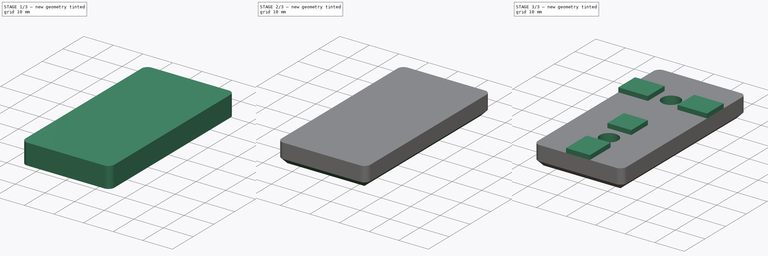
[diagram: build sequence overview — one tinted view per stage of 3, left to right]
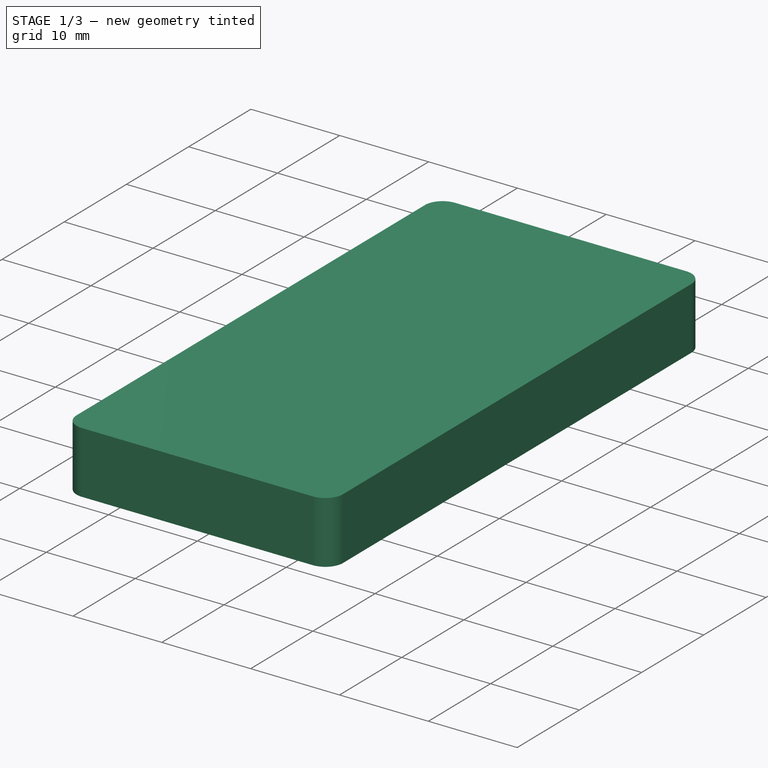
[diagram: stage 1 of 3 — iso view after this stage's code; geometry added in this stage tinted green]
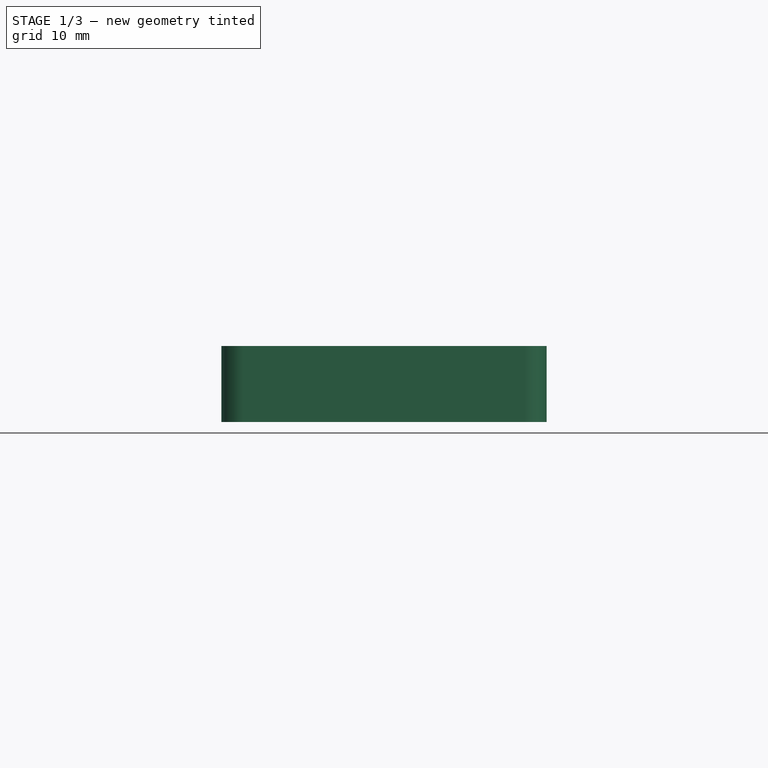
[diagram: stage 1 of 3 — front view after this stage's code; geometry added in this stage tinted green]
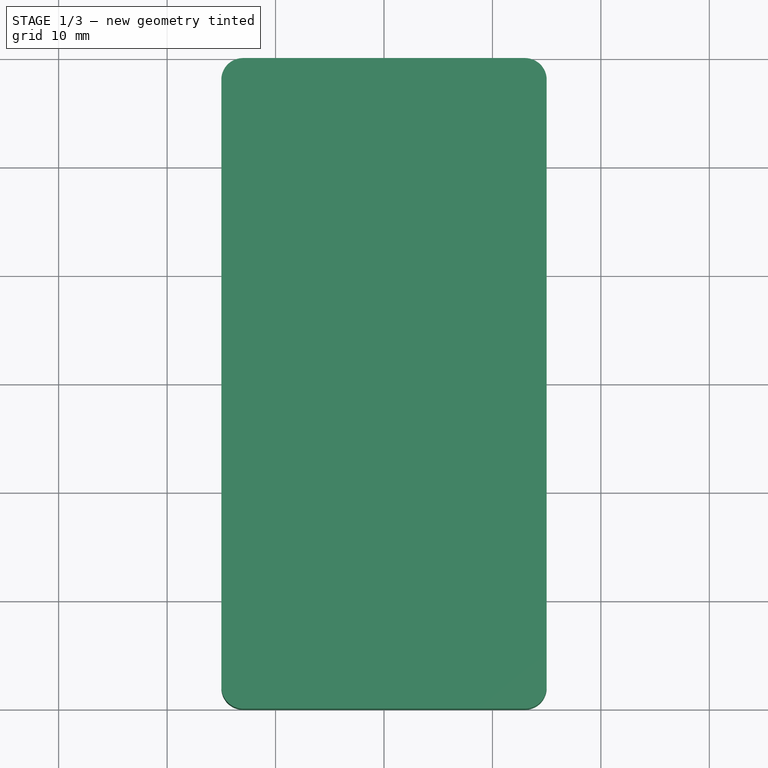
[diagram: stage 1 of 3 — top view after this stage's code; geometry added in this stage tinted green]
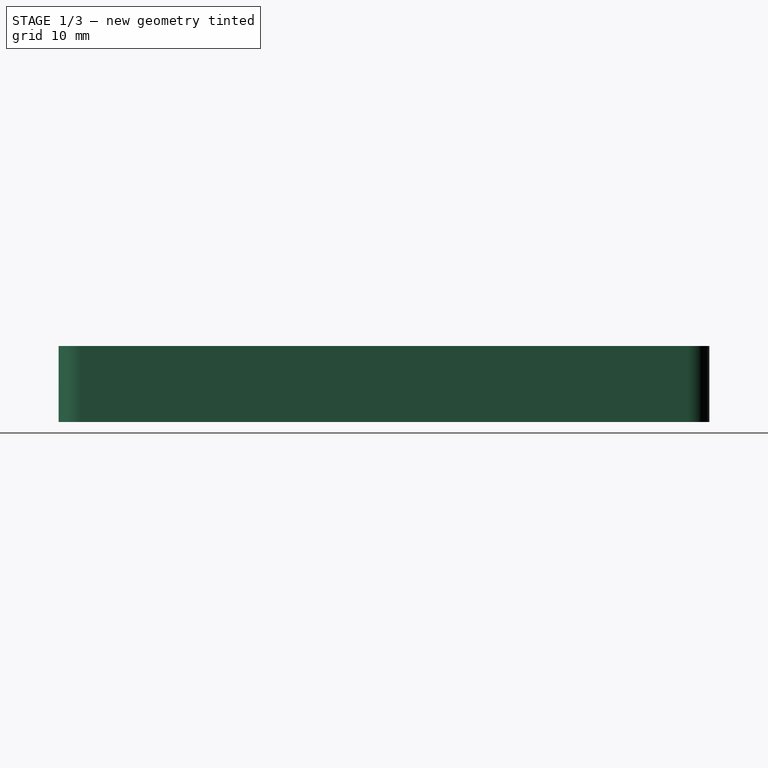
[diagram: stage 1 of 3 — right view after this stage's code; geometry added in this stage tinted green]
FCSTD DOCUMENT  (FreeCAD 0.19R)
Label: cornercoupler
License: All rights reserved
LicenseURL: http://en.wikipedia.org/wiki/All_rights_reserved
objects: Sketcher::SketchObject×3, PartDesign::Pad×2, PartDesign::Fillet×1, PartDesign::Chamfer×1, PartDesign::Pocket×1, PartDesign::Body×1
note: 14 computed .brp shape members not serialized (recipe doc carries the construction recipe); baked Part::Feature solids carry a one-line shape summary decoded from their .brp

FEATURE [Sketcher::SketchObject] Sketch
  MapMode = 5
  Support = -> [XY_Plane]
  sketch-geometry (4):
    g0: LineSegment StartX=-15 StartY=0 StartZ=0 EndX=15 EndY=0 EndZ=0
    g1: LineSegment StartX=15 StartY=0 StartZ=0 EndX=15 EndY=-60 EndZ=0
    g2: LineSegment StartX=15 StartY=-60 StartZ=0 EndX=-15 EndY=-60 EndZ=0
    g3: LineSegment StartX=-15 StartY=-60 StartZ=0 EndX=-15 EndY=0 EndZ=0
  constraints (11):
    c: Coincident(g0,g1)
    c: Coincident(g1,g2)
    c: Coincident(g2,g3)
    c: Coincident(g3,g0)
    c: Horizontal(g2)
    c: Vertical(g1)
    c: Symmetric(g0,g0,g-2)
    c: DistanceX(g0,g0) = 30
    c: DistanceY(g3,g3) = 60
    c: PointOnObject(g0,g-1)
    c: Vertical(g3)
FEATURE [PartDesign::Pad] Pad
  AllowMultiFace = false
  Length = 7
  Length2 = 100
  Profile = -> Sketch
  Type = 0
FEATURE [PartDesign::Fillet] Fillet
  Base = -> Pad [Edge5,Edge2,Edge1,Edge8]
  BaseFeature = -> Pad
  Radius = 2
  SupportTransform = false
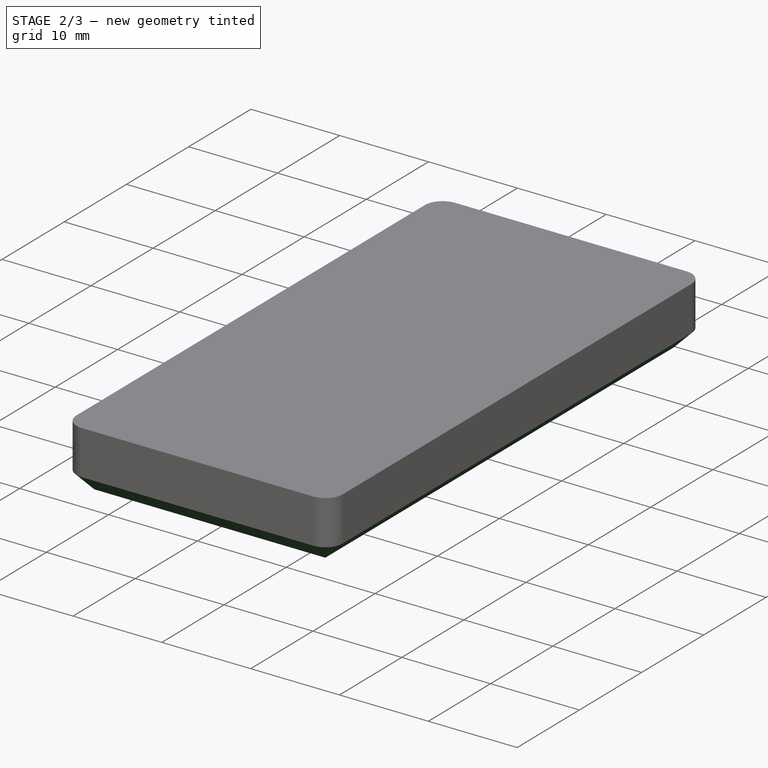
[diagram: stage 2 of 3 — iso view after this stage's code; geometry added in this stage tinted green]
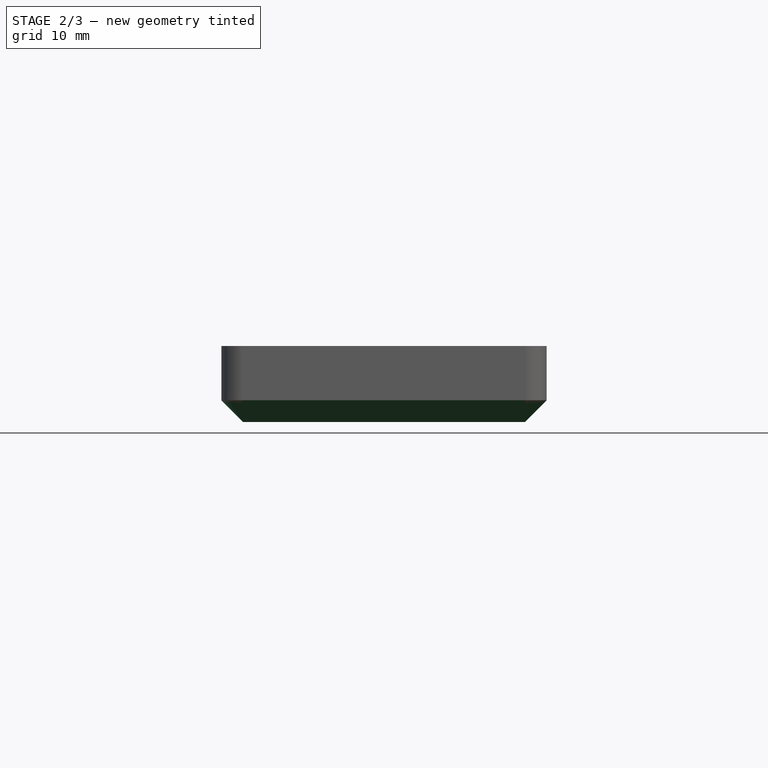
[diagram: stage 2 of 3 — front view after this stage's code; geometry added in this stage tinted green]
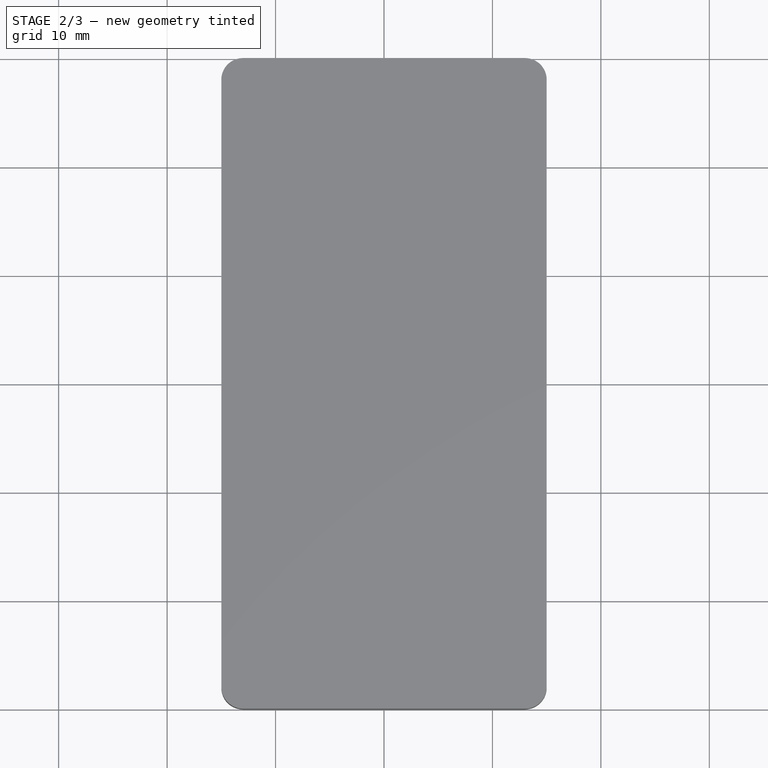
[diagram: stage 2 of 3 — top view after this stage's code; geometry added in this stage tinted green]
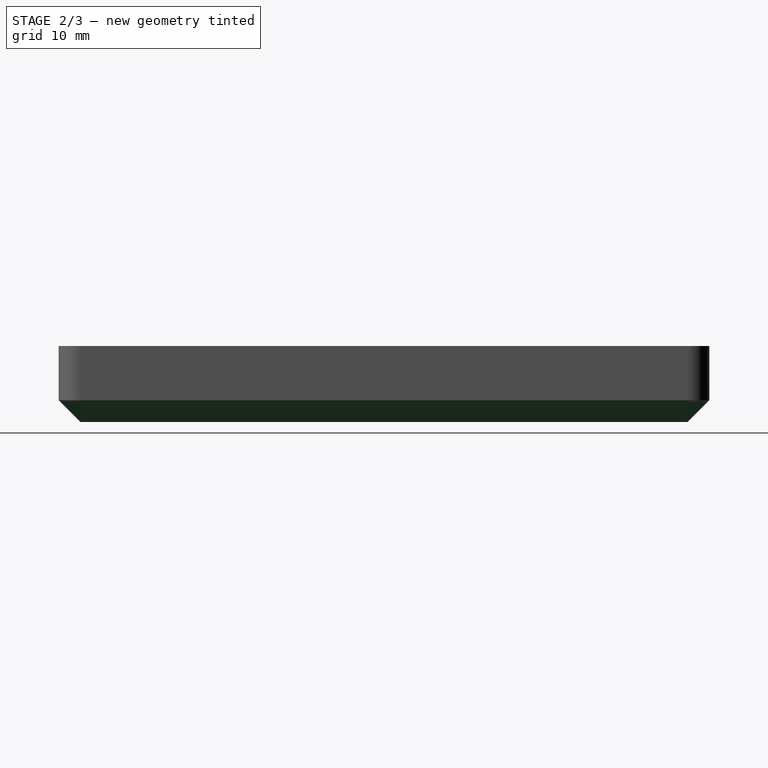
[diagram: stage 2 of 3 — right view after this stage's code; geometry added in this stage tinted green]
FEATURE [PartDesign::Chamfer] Chamfer
  Angle = 45
  Base = -> Fillet [Edge8,Edge11,Edge7,Edge1]
  BaseFeature = -> Fillet
  ChamferType = 0
  FlipDirection = false
  Size = 2
  Size2 = 1
  SupportTransform = false
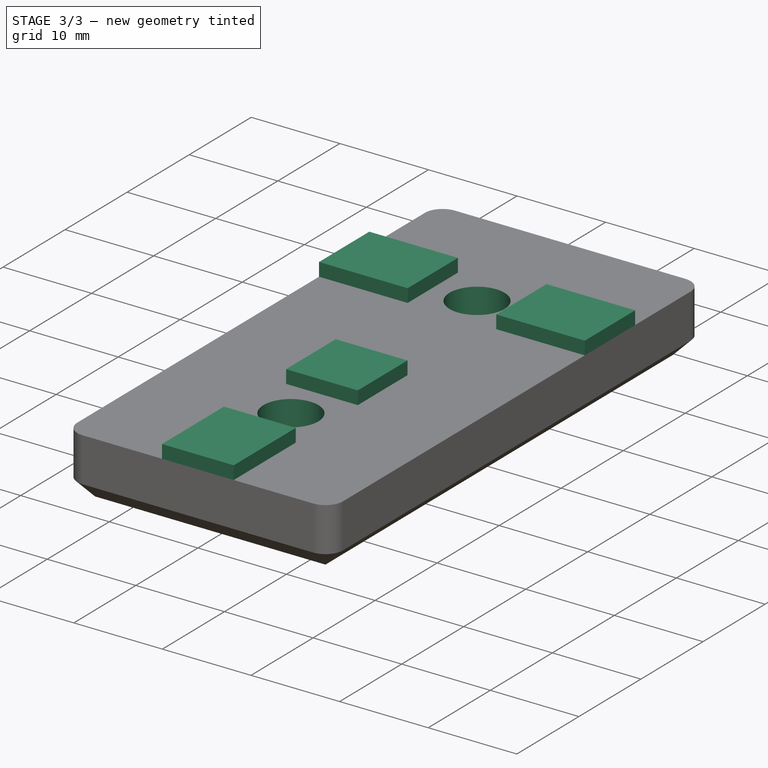
[diagram: stage 3 of 3 — iso view after this stage's code; geometry added in this stage tinted green]
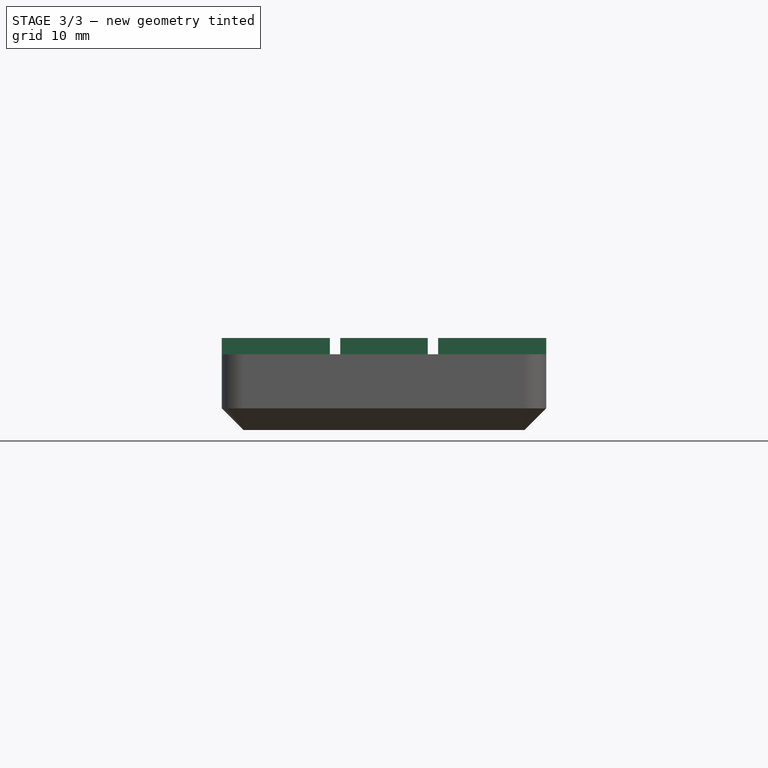
[diagram: stage 3 of 3 — front view after this stage's code; geometry added in this stage tinted green]
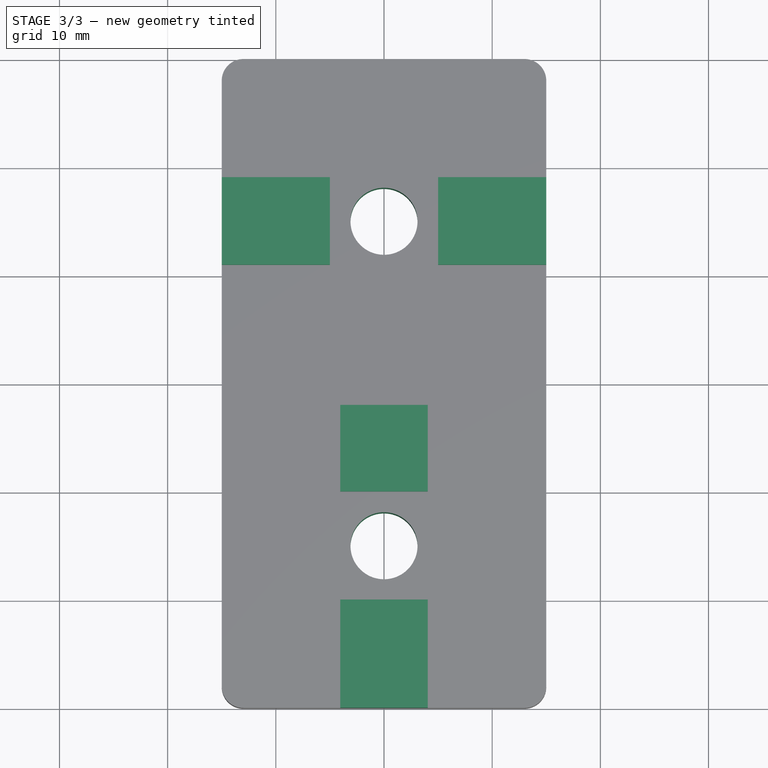
[diagram: stage 3 of 3 — top view after this stage's code; geometry added in this stage tinted green]
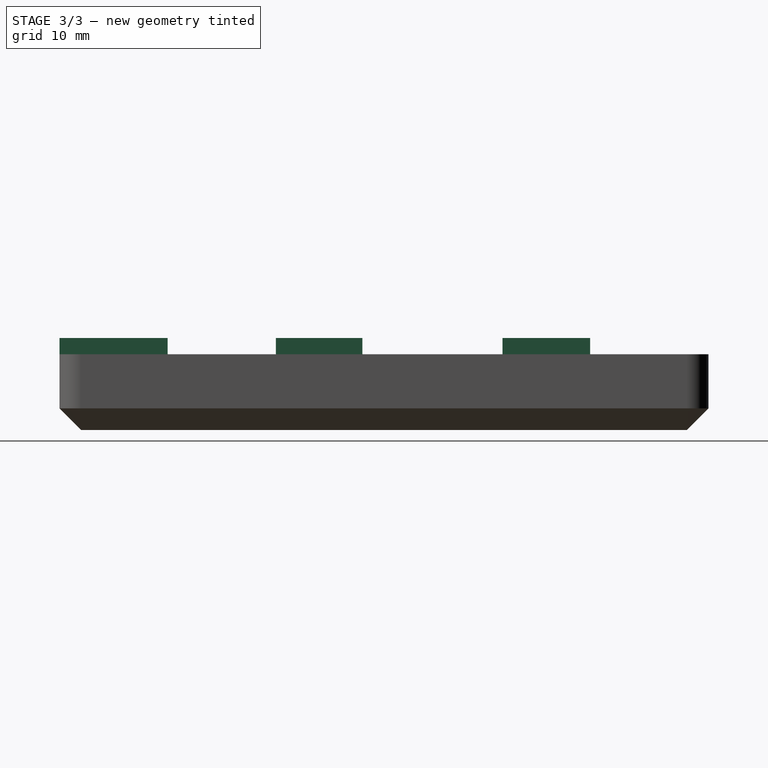
[diagram: stage 3 of 3 — right view after this stage's code; geometry added in this stage tinted green]
FEATURE [Sketcher::SketchObject] Sketch001
  MapMode = 5
  Placement = pos=(0,0,7) rot=(0,0,1;0rad)
  Support = -> [Chamfer]
  sketch-geometry (2):
    g0: Circle CenterX=0 CenterY=-15 CenterZ=0 NormalX=0 NormalY=0 NormalZ=1 AngleXU=0 Radius=3.1
    g1: Circle CenterX=0 CenterY=-45 CenterZ=0 NormalX=0 NormalY=0 NormalZ=1 AngleXU=0 Radius=3.1
  constraints (6):
    c: PointOnObject(g0,g-2)
    c: DistanceY(g0) = -15
    c: Radius(g0) = 3.1
    c: PointOnObject(g1,g-2)
    c: Equal(g1,g0)
    c: DistanceY(g1) = -45
FEATURE [PartDesign::Pocket] Pocket
  AllowMultiFace = false
  BaseFeature = -> Chamfer
  Length = 5
  Length2 = 100
  Profile = -> Sketch001
  Type = 1
FEATURE [Sketcher::SketchObject] Sketch002
  ExternalGeometry = -> [Pocket]
  MapMode = 5
  Placement = pos=(0,0,7) rot=(0,0,1;0rad)
  Support = -> [Pocket]
  sketch-geometry (18):
    g0: LineSegment [constr] StartX=0 StartY=-15 StartZ=0 EndX=15 EndY=-15 EndZ=0
    g1: LineSegment StartX=-15 StartY=-10.95 StartZ=0 EndX=-5 EndY=-10.95 EndZ=0
    g2: LineSegment StartX=-5 StartY=-10.95 StartZ=0 EndX=-5 EndY=-19.05 EndZ=0
    g3: LineSegment StartX=-5 StartY=-19.05 StartZ=0 EndX=-15 EndY=-19.05 EndZ=0
    g4: LineSegment StartX=-15 StartY=-19.05 StartZ=0 EndX=-15 EndY=-10.95 EndZ=0
    g5: LineSegment StartX=5 StartY=-10.95 StartZ=0 EndX=15 EndY=-10.95 EndZ=0
    g6: LineSegment StartX=15 StartY=-10.95 StartZ=0 EndX=15 EndY=-19.05 EndZ=0
    g7: LineSegment StartX=15 StartY=-19.05 StartZ=0 EndX=5 EndY=-19.05 EndZ=0
    g8: LineSegment StartX=5 StartY=-19.05 StartZ=0 EndX=5 EndY=-10.95 EndZ=0
    g9: LineSegment StartX=-4.05 StartY=-50 StartZ=0 EndX=4.05 EndY=-50 EndZ=0
    g10: LineSegment StartX=4.05 StartY=-50 StartZ=0 EndX=4.05 EndY=-60 EndZ=0
    g11: LineSegment StartX=4.05 StartY=-60 StartZ=0 EndX=-4.05 EndY=-60 EndZ=0
    g12: LineSegment StartX=-4.05 StartY=-60 StartZ=0 EndX=-4.05 EndY=-50 EndZ=0
    g13: LineSegment StartX=-4.05 StartY=-32 StartZ=0 EndX=4.05 EndY=-32 EndZ=0
    g14: LineSegment StartX=4.05 StartY=-32 StartZ=0 EndX=4.05 EndY=-40 EndZ=0
    g15: LineSegment StartX=4.05 StartY=-40 StartZ=0 EndX=-4.05 EndY=-40 EndZ=0
    g16: LineSegment StartX=-4.05 StartY=-40 StartZ=0 EndX=-4.05 EndY=-32 EndZ=0
    g17: LineSegment [constr] StartX=0 StartY=-45 StartZ=0 EndX=15 EndY=-45 EndZ=0
  constraints (48):
    c: Coincident(g0,g-3)
    c: Horizontal(g0)
    c: Coincident(g1,g2)
    c: Coincident(g2,g3)
    c: Coincident(g3,g4)
    c: Coincident(g4,g1)
    c: Horizontal(g1)
    c: Horizontal(g3)
    c: Vertical(g4)
    c: Coincident(g5,g6)
    c: Coincident(g6,g7)
    c: Coincident(g7,g8)
    c: Coincident(g8,g5)
    c: Horizontal(g5)
    c: Horizontal(g7)
    c: Vertical(g6)
    c: PointOnObject(g1,g-5)
    c: Symmetric(g5,g7,g0)
    c: PointOnObject(g0,g6)
    c: Symmetric(g1,g5,g-2)
    c: Symmetric(g2,g7,g-2)
    c: Distance(g1,g5) = 10
    c: Coincident(g9,g10)
    c: Coincident(g10,g11)
    c: Coincident(g11,g12)
    c: Coincident(g12,g9)
    c: Horizontal(g11)
    c: Vertical(g10)
    c: Vertical(g12)
    c: PointOnObject(g10,g-6)
    c: Coincident(g13,g14)
    c: Coincident(g14,g15)
    c: Coincident(g15,g16)
    c: Coincident(g16,g13)
    c: Horizontal(g13)
    c: Vertical(g14)
    c: Vertical(g16)
    c: DistanceY(g4,g4) = 8.1
    c: Symmetric(g14,g15,g-2)
    c: Symmetric(g9,g9,g-2)
    c: Equal(g15,g9)
    c: Equal(g9,g4)
    c: Coincident(g17,g-7)
    c: PointOnObject(g17,g-4)
    c: Symmetric(g14,g9,g17)
    c: Distance(g15,g9) = 10
    c: Equal(g3,g7)
    c: DistanceY(g16,g16) = 8
FEATURE [PartDesign::Pad] Pad001
  BaseFeature = -> Pocket
  Length = 1.5
  Length2 = 100
  Profile = -> Sketch002
  Type = 0
FEATURE [PartDesign::Body] Body
  Group = -> [Sketch,Pad,Fillet,Chamfer,Sketch001,Pocket,Sketch002,Pad001]
  Origin = -> Origin
  Tip = -> Pad001
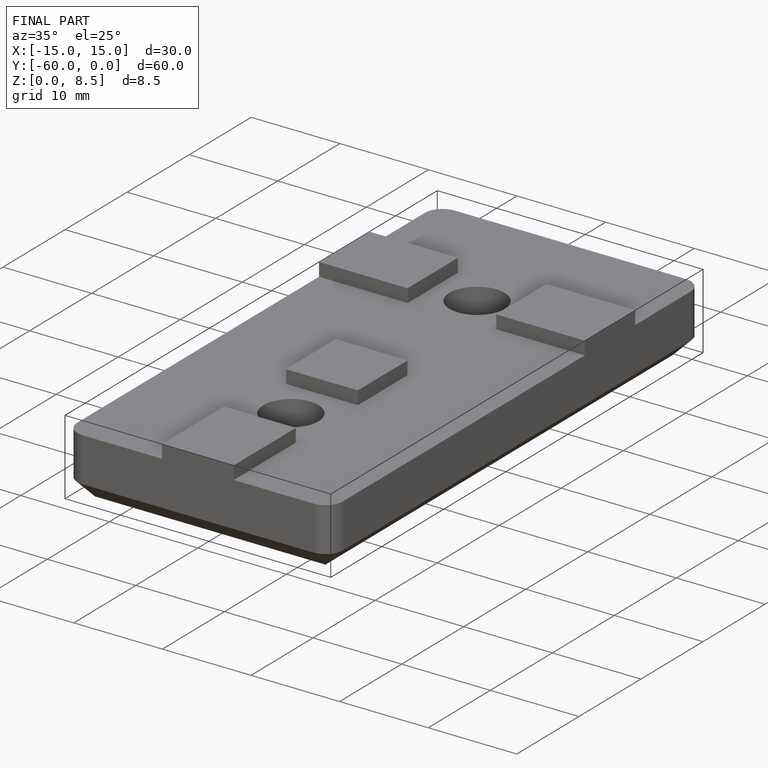
[diagram: finished part — iso view with bounding-box wireframe]
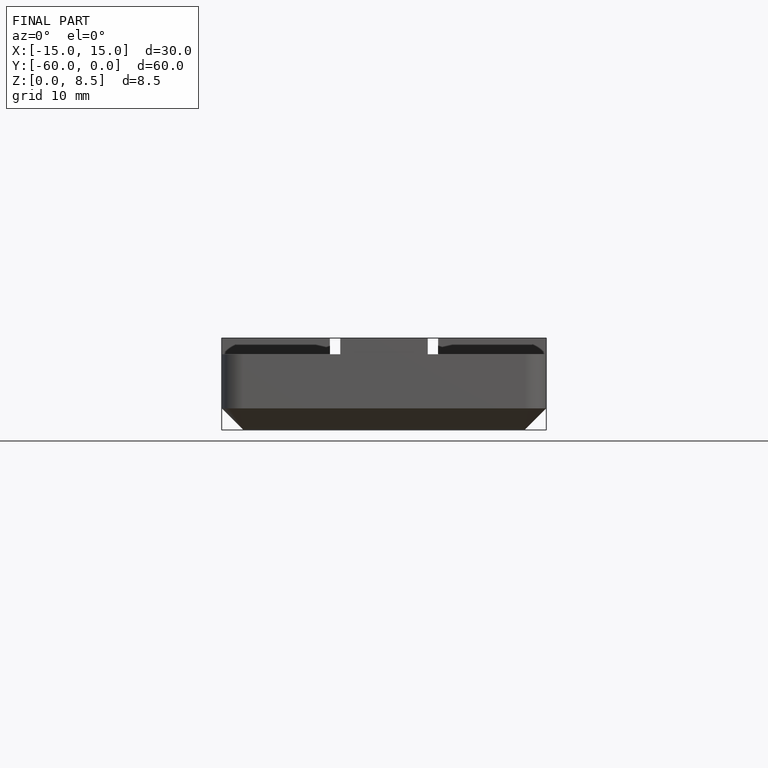
[diagram: finished part — front view with bounding-box wireframe]
